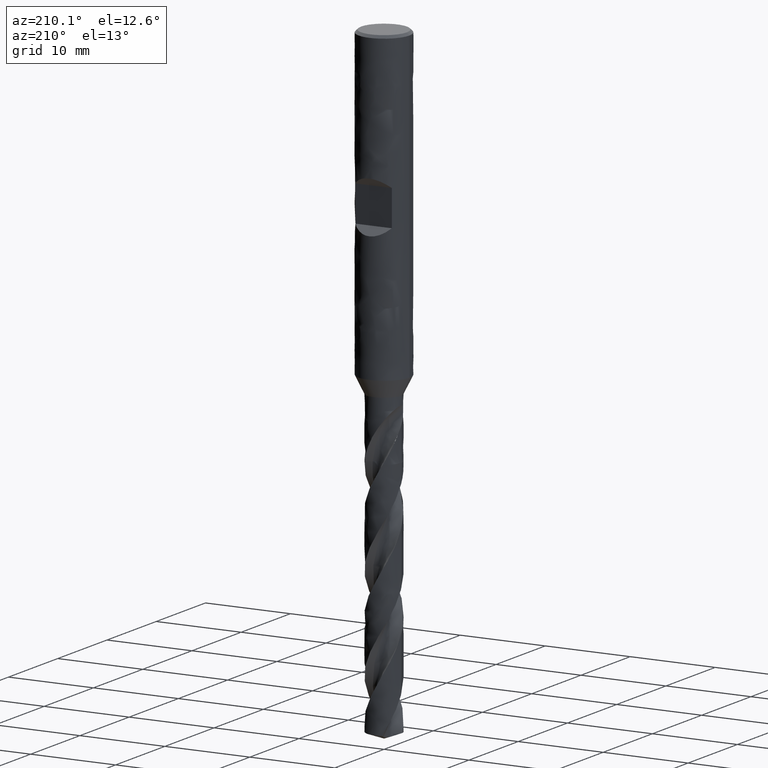
[diagram: clean part render]
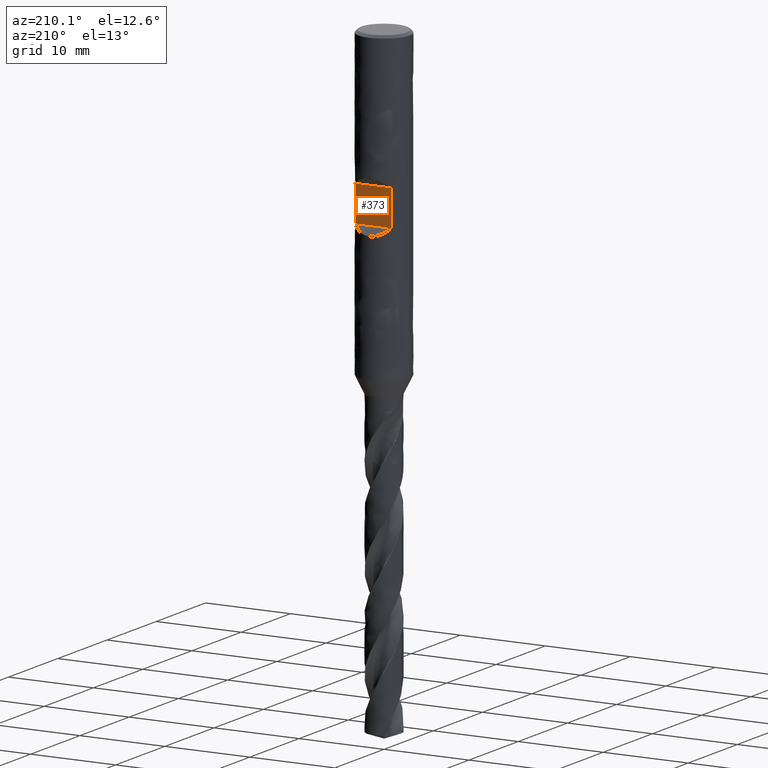
[diagram: same view with one face highlighted and labeled with its STEP entity id]
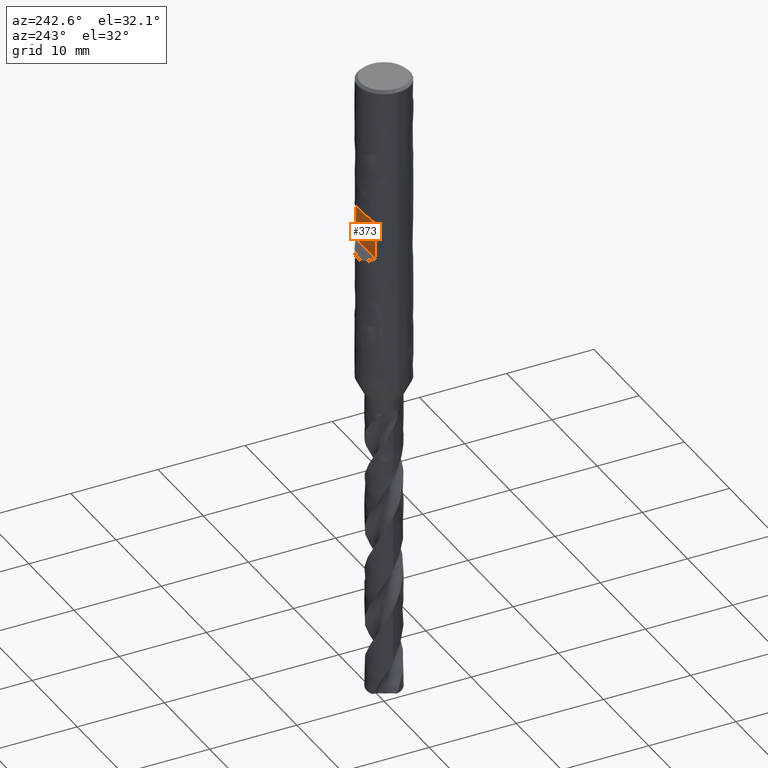
[diagram: same view with one face highlighted and labeled with its STEP entity id]
A machine part, auxiliary view. The second image highlights one B-rep face of the part: STEP entity #373.
A second angle (auxiliary view) of the same face is appended — the face is thin or edge-on in the first view.
In plain terms, the highlighted planar face has unit normal (0, 1, 0).
Its self-contained STEP definition (entity closure, byte-faithful):
#187 = VERTEX_POINT('', #188);
#188 = CARTESIAN_POINT('', (-2.14242852856285, 2.1, -15.9));
#189 = VERTEX_POINT('', #190);
#190 = CARTESIAN_POINT('', (2.14242852856286, 2.1, -15.9));
#266 = EDGE_CURVE('', #187, #267, #269, .T.);
#267 = VERTEX_POINT('', #268);
#268 = CARTESIAN_POINT('', (-2.14242852856285, 2.1, -20.1));
#269 = LINE('', #270, #271);
#270 = CARTESIAN_POINT('', (-2.14242852856285, 2.1, -15.9));
#271 = VECTOR('', #272, 4.2);
#272 = DIRECTION('', (4.44089209850063E-16, 4.44089209850063E-16, -4.2));
#275 = VERTEX_POINT('', #276);
#276 = CARTESIAN_POINT('', (2.14242852856286, 2.1, -20.1));
#349 = EDGE_CURVE('', #189, #275, #350, .T.);
#350 = LINE('', #351, #352);
#351 = CARTESIAN_POINT('', (2.14242852856286, 2.1, -15.9));
#352 = VECTOR('', #353, 4.2);
#353 = DIRECTION('', (0., 4.44089209850063E-16, -4.2));
#373 = ADVANCED_FACE('', (#374), #390, .T.);
#374 = FACE_OUTER_BOUND('', #375, .T.);
#375 = EDGE_LOOP('', (#376, #377, #383, #384));
#376 = ORIENTED_EDGE('', *, *, #349, .T.);
#377 = ORIENTED_EDGE('', *, *, #378, .T.);
#378 = EDGE_CURVE('', #275, #267, #379, .T.);
#379 = LINE('', #380, #381);
#380 = CARTESIAN_POINT('', (2.14242852856286, 2.1, -20.1));
#381 = VECTOR('', #382, 4.28485705712571);
#382 = DIRECTION('', (-4.28485705712571, 4.44089209850063E-16, 0.));
#383 = ORIENTED_EDGE('', *, *, #266, .F.);
#384 = ORIENTED_EDGE('', *, *, #385, .F.);
#385 = EDGE_CURVE('', #189, #187, #386, .T.);
#386 = LINE('', #387, #388);
#387 = CARTESIAN_POINT('', (2.14242852856286, 2.1, -15.9));
#388 = VECTOR('', #389, 4.28485705712571);
#389 = DIRECTION('', (-4.28485705712571, 4.44089209850063E-16, 0.));
#390 = PLANE('', #391);
#391 = AXIS2_PLACEMENT_3D('', #392, #393, #394);
#392 = CARTESIAN_POINT('', (3., 2.1, -20.1));
#393 = DIRECTION('', (0., 1., 1.05735526154777E-16));
#394 = DIRECTION('', (-1., 0., 0.));